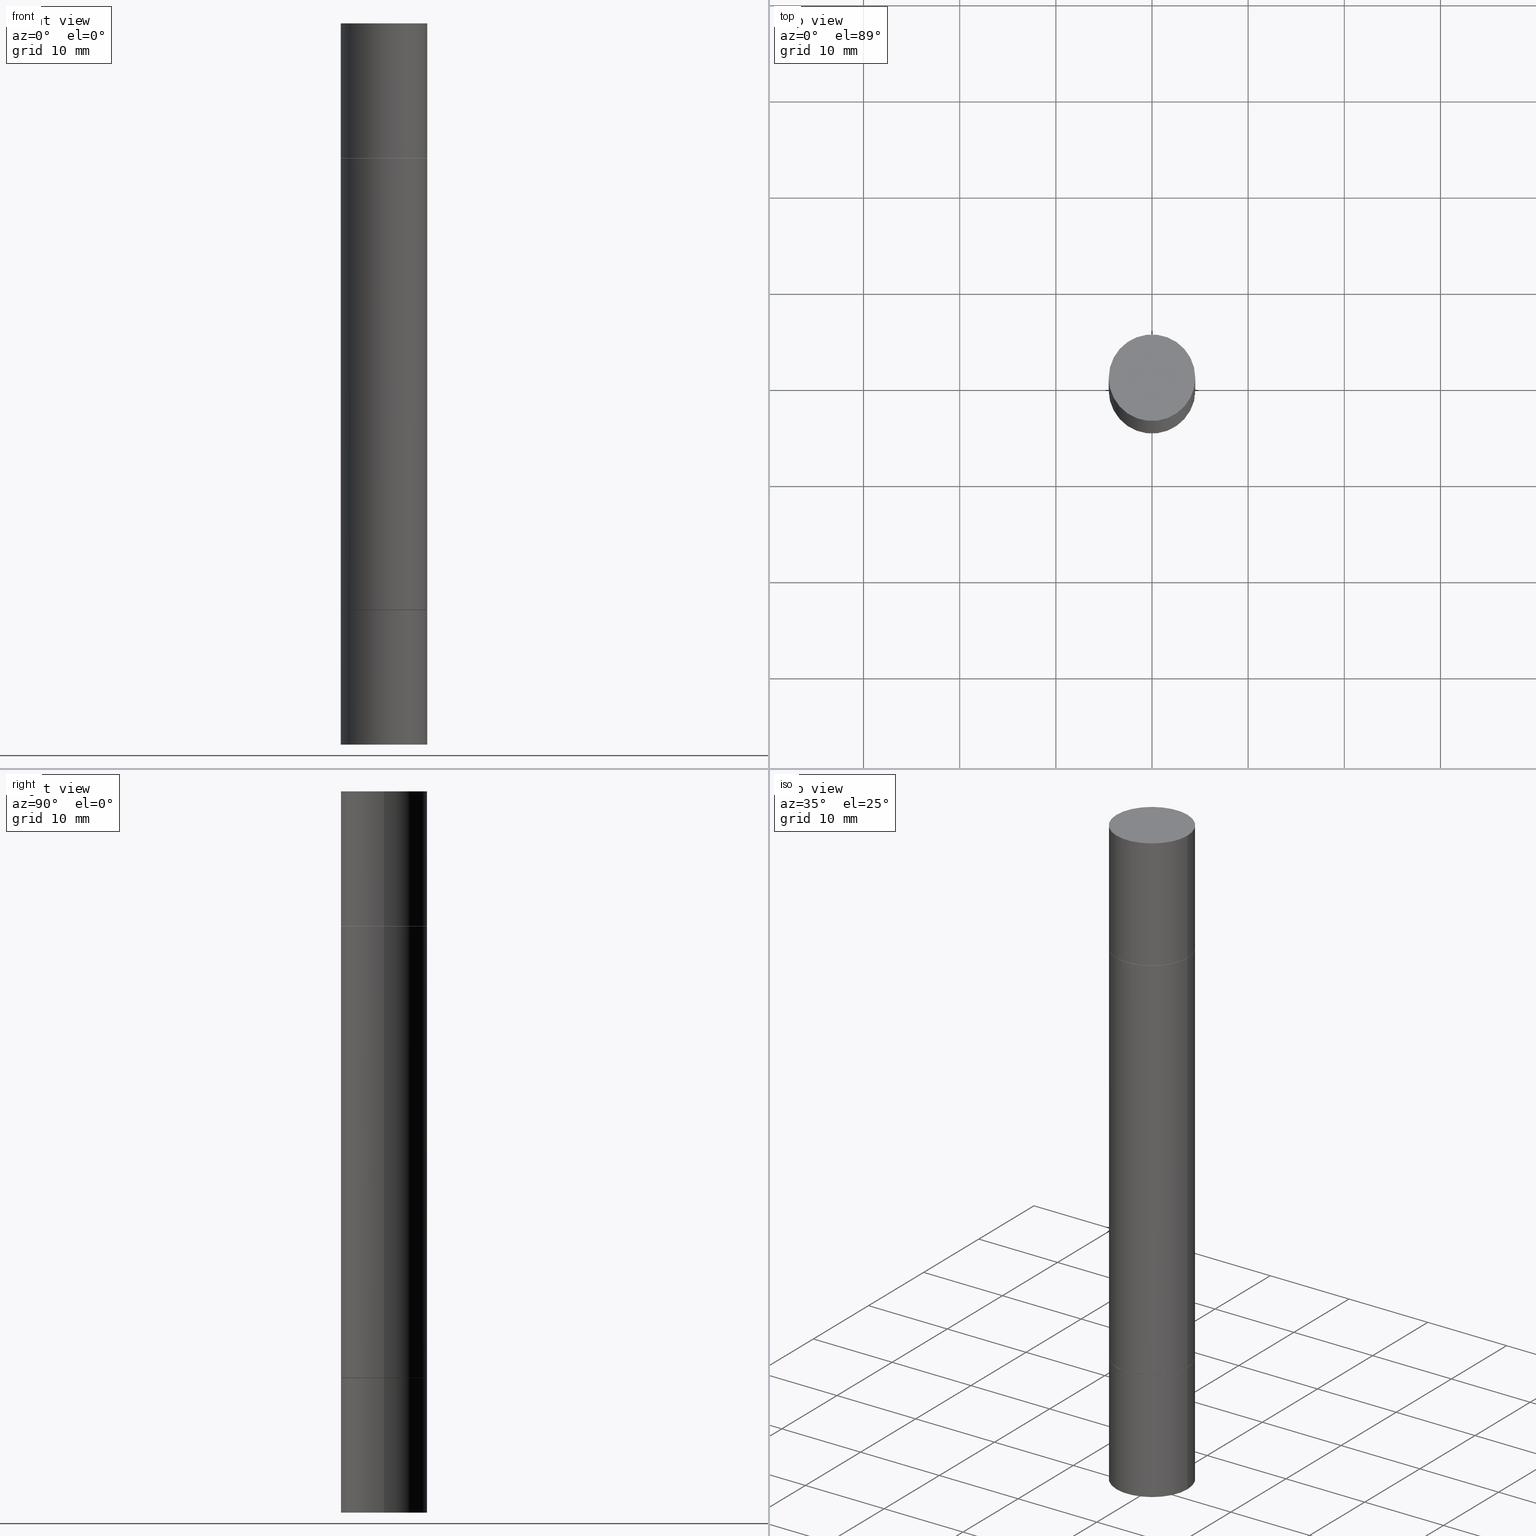
[diagram: canonical four-view strip — front | top / right | iso, engineering-drawing reading convention]
A machine part, canonical four-view strip (front | top / right | iso — engineering-drawing reading convention). The complete STEP part file that produces these views, byte-faithful:
ISO-10303-21;
HEADER;
FILE_DESCRIPTION (( 'STEP AP203' ),
    '1' );
FILE_NAME ('48938.STEP',
    '2024-03-04T15:49:49',
    ( '' ),
    ( '' ),
    'SwSTEP 2.0',
    'SolidWorks 2023',
    '' );
FILE_SCHEMA (( 'CONFIG_CONTROL_DESIGN' ));
ENDSEC;

DATA;
#1 = CARTESIAN_POINT ( 'NONE',  ( 0.000000000000000000, -1.031172645228302408E-14, -2.952799999999998981 ) ) ;
#2 = AXIS2_PLACEMENT_3D ( 'NONE', #75, #79, #178 ) ;
#3 = DIRECTION ( 'NONE',  ( 2.445468806185136597E-29, 3.492890411551752677E-15, 1.000000000000000000 ) ) ;
#4 = ORIENTED_EDGE ( 'NONE', *, *, #443, .F. ) ;
#5 = FACE_OUTER_BOUND ( 'NONE', #192, .T. ) ;
#6 = ORIENTED_EDGE ( 'NONE', *, *, #333, .T. ) ;
#7 = CARTESIAN_POINT ( 'NONE',  ( 5.873037884934223228E-29, -8.385141583365697263E-15, -2.401599999999999735 ) ) ;
#8 = EDGE_CURVE ( 'NONE', #269, #176, #424, .T. ) ;
#9 = DIRECTION ( 'NONE',  ( -2.445468806185136597E-29, 3.491481338843145583E-15, 1.000000000000000000 ) ) ;
#10 = ORIENTED_EDGE ( 'NONE', *, *, #88, .F. ) ;
#11 = MANIFOLD_SOLID_BREP ( 'Mirror1[1]', #201 ) ;
#12 = AXIS2_PLACEMENT_3D ( 'NONE', #146, #668, #454 ) ;
#13 = AXIS2_PLACEMENT_3D ( 'NONE', #523, #575, #111 ) ;
#14 = MANIFOLD_SOLID_BREP ( 'Body-Move/Copy2[1]', #244 ) ;
#15 = VECTOR ( 'NONE', #126, 39.37007874015748143 ) ;
#16 = CARTESIAN_POINT ( 'NONE',  ( 1.237031838352180770E-15, 0.1771499999999980590, -0.5512000000000003563 ) ) ;
#17 = EDGE_LOOP ( 'NONE', ( #329, #143 ) ) ;
#18 = CARTESIAN_POINT ( 'NONE',  ( 5.873037884934223228E-29, -1.923200839900334937E-15, -0.5511999999999992461 ) ) ;
#19 = EDGE_LOOP ( 'NONE', ( #61, #420, #639, #156 ) ) ;
#20 = DIRECTION ( 'NONE',  ( -2.445468806185136877E-29, -3.492890411551753071E-15, -1.000000000000000000 ) ) ;
#21 = EDGE_LOOP ( 'NONE', ( #32, #429, #321, #266 ) ) ;
#22 = CARTESIAN_POINT ( 'NONE',  ( 0.000000000000000000, -1.031172645228302408E-14, -2.952799999999998981 ) ) ;
#23 = ORIENTED_EDGE ( 'NONE', *, *, #607, .F. ) ;
#24 = FACE_OUTER_BOUND ( 'NONE', #391, .T. ) ;
#25 = DIRECTION ( 'NONE',  ( 1.000000000000000000, -6.982962677686266711E-15, 0.000000000000000000 ) ) ;
#26 = AXIS2_PLACEMENT_3D ( 'NONE', #347, #279, #25 ) ;
#27 = DIRECTION ( 'NONE',  ( 2.445468806185136597E-29, 3.492890411551752677E-15, 1.000000000000000000 ) ) ;
#28 = AXIS2_PLACEMENT_3D ( 'NONE', #638, #173, #60 ) ;
#29 =( GEOMETRIC_REPRESENTATION_CONTEXT ( 3 ) GLOBAL_UNCERTAINTY_ASSIGNED_CONTEXT ( ( #664 ) ) GLOBAL_UNIT_ASSIGNED_CONTEXT ( ( #131, #484, #595 ) ) REPRESENTATION_CONTEXT ( 'NONE', 'WORKASPACE' ) );
#30 = CARTESIAN_POINT ( 'NONE',  ( 7.220980290903470182E-29, 2.080354946989631982E-18, 5.463695987328526437E-16 ) ) ;
#31 = CARTESIAN_POINT ( 'NONE',  ( 7.220980290903470182E-29, 2.080354946989631982E-18, 5.463695987328526437E-16 ) ) ;
#32 = ORIENTED_EDGE ( 'NONE', *, *, #585, .F. ) ;
#33 = MECHANICAL_CONTEXT ( 'NONE', #368, 'mechanical' ) ;
#34 = COORDINATED_UNIVERSAL_TIME_OFFSET ( 5, 0, .BEHIND. ) ;
#35 = CIRCLE ( 'NONE', #636, 0.1771500000000000019 ) ;
#36 = DIRECTION ( 'NONE',  ( -2.438088387897960049E-29, 3.491481338843145188E-15, 1.000000000000000000 ) ) ;
#37 = VECTOR ( 'NONE', #611, 39.37007874015748143 ) ;
#38 = DIRECTION ( 'NONE',  ( 2.445468806185136597E-29, 3.492890411551752677E-15, 1.000000000000000000 ) ) ;
#39 = ORIENTED_EDGE ( 'NONE', *, *, #576, .F. ) ;
#40 = DIRECTION ( 'NONE',  ( 2.445468806185136597E-29, 3.492890411551752677E-15, 1.000000000000000000 ) ) ;
#41 = LINE ( 'NONE', #253, #330 ) ;
#42 = DATE_AND_TIME ( #677, #141 ) ;
#43 = CARTESIAN_POINT ( 'NONE',  ( 0.1771500000000000019, -1.154875829063514805E-14, -2.952799999999998981 ) ) ;
#44 = DATE_TIME_ROLE ( 'creation_date' ) ;
#45 = DIRECTION ( 'NONE',  ( 1.000000000000000000, -6.982962677686266711E-15, 0.000000000000000000 ) ) ;
#46 = AXIS2_PLACEMENT_3D ( 'NONE', #294, #69, #411 ) ;
#47 = VECTOR ( 'NONE', #613, 39.37007874015748143 ) ;
#48 = EDGE_CURVE ( 'NONE', #179, #340, #225, .T. ) ;
#49 = DIRECTION ( 'NONE',  ( 1.000000000000000000, -6.982962677686266711E-15, 0.000000000000000000 ) ) ;
#50 = FACE_OUTER_BOUND ( 'NONE', #335, .T. ) ;
#51 = CARTESIAN_POINT ( 'NONE',  ( 0.1771499999999998354, -4.777790227842073988E-15, -1.476399999999999491 ) ) ;
#52 = LINE ( 'NONE', #416, #170 ) ;
#53 = CARTESIAN_POINT ( 'NONE',  ( 5.873037884934223228E-29, -8.385141583365697263E-15, -2.401599999999999735 ) ) ;
#54 = CARTESIAN_POINT ( 'NONE',  ( 5.870592416128037625E-29, -1.926693730311889446E-15, -0.5521999999999996911 ) ) ;
#55 = VERTEX_POINT ( 'NONE', #129 ) ;
#56 = AXIS2_PLACEMENT_3D ( 'NONE', #341, #498, #445 ) ;
#57 = AXIS2_PLACEMENT_3D ( 'NONE', #470, #9, #105 ) ;
#58 = DIRECTION ( 'NONE',  ( -2.445468806185136597E-29, -3.492890411551752677E-15, -1.000000000000000000 ) ) ;
#59 = EDGE_LOOP ( 'NONE', ( #385, #6 ) ) ;
#60 = DIRECTION ( 'NONE',  ( 0.000000000000000000, 1.000000000000000000, -3.084220145260249380E-15 ) ) ;
#61 = ORIENTED_EDGE ( 'NONE', *, *, #354, .F. ) ;
#62 = CARTESIAN_POINT ( 'NONE',  ( 5.873037884934223228E-29, -1.923200839900334937E-15, -0.5511999999999992461 ) ) ;
#63 = ORIENTED_EDGE ( 'NONE', *, *, #262, .T. ) ;
#64 = VECTOR ( 'NONE', #676, 39.37007874015748143 ) ;
#65 = CIRCLE ( 'NONE', #260, 0.1771500000000000019 ) ;
#66 = LOCAL_TIME ( 10, 49, 49.00000000000000000, #623 ) ;
#67 = DIRECTION ( 'NONE',  ( 1.000000000000000000, -6.982962677686266711E-15, 0.000000000000000000 ) ) ;
#68 = EDGE_LOOP ( 'NONE', ( #274, #214, #372, #160 ) ) ;
#69 = DIRECTION ( 'NONE',  ( 2.445468806185136597E-29, 3.492890411551752677E-15, 1.000000000000000000 ) ) ;
#70 = CYLINDRICAL_SURFACE ( 'NONE', #553, 0.1771499999999998354 ) ;
#71 = EDGE_LOOP ( 'NONE', ( #437, #233 ) ) ;
#72 = DIRECTION ( 'NONE',  ( -2.445468806185136597E-29, 3.491481338843145583E-15, 1.000000000000000000 ) ) ;
#73 = ORIENTED_EDGE ( 'NONE', *, *, #295, .T. ) ;
#74 = AXIS2_PLACEMENT_3D ( 'NONE', #227, #77, #496 ) ;
#75 = CARTESIAN_POINT ( 'NONE',  ( 0.000000000000000000, -1.031172645228302408E-14, -2.952799999999998981 ) ) ;
#76 = DIRECTION ( 'NONE',  ( 1.000000000000000000, -6.982962677686267499E-15, 0.000000000000000000 ) ) ;
#77 = DIRECTION ( 'NONE',  ( -2.438088387897959769E-29, -3.492890411551753071E-15, -1.000000000000000000 ) ) ;
#78 = ORIENTED_EDGE ( 'NONE', *, *, #167, .T. ) ;
#79 = DIRECTION ( 'NONE',  ( -2.445468806185136597E-29, -3.492890411551752677E-15, -1.000000000000000000 ) ) ;
#80 = CARTESIAN_POINT ( 'NONE',  ( -0.1771500000000000019, -9.096389231977797770E-15, -2.952799999999998981 ) ) ;
#81 = PLANE ( 'NONE',  #124 ) ;
#82 = CARTESIAN_POINT ( 'NONE',  ( 5.873037884934223228E-29, -1.923200839900334937E-15, -0.5511999999999992461 ) ) ;
#83 = APPROVAL_STATUS ( 'not_yet_approved' ) ;
#84 = CARTESIAN_POINT ( 'NONE',  ( 5.873037884934223228E-29, -8.385141583365697263E-15, -2.401599999999999735 ) ) ;
#85 = ADVANCED_FACE ( 'NONE', ( #547 ), #288, .F. ) ;
#86 = AXIS2_PLACEMENT_3D ( 'NONE', #164, #632, #161 ) ;
#87 = DATE_TIME_ROLE ( 'classification_date' ) ;
#88 = EDGE_CURVE ( 'NONE', #169, #389, #505, .T. ) ;
#89 = CARTESIAN_POINT ( 'NONE',  ( 0.000000000000000000, -1.031172645228302408E-14, -2.952799999999998981 ) ) ;
#90 = PERSON_AND_ORGANIZATION_ROLE ( 'creator' ) ;
#91 = CARTESIAN_POINT ( 'NONE',  ( 5.870592416128037625E-29, -8.381650102026854256E-15, -2.400599999999999401 ) ) ;
#92 = EDGE_CURVE ( 'NONE', #179, #273, #404, .T. ) ;
#93 = CARTESIAN_POINT ( 'NONE',  ( -0.1761500000000000010, -7.133520554324280581E-15, -2.401599999999999735 ) ) ;
#94 = CARTESIAN_POINT ( 'NONE',  ( -0.1771500000000000019, -7.113565100066610661E-16, -0.5521999999999996911 ) ) ;
#95 = PERSON_AND_ORGANIZATION_ROLE ( 'classification_officer' ) ;
#96 = CARTESIAN_POINT ( 'NONE',  ( 0.1771500000000000019, -3.163725568664010262E-15, -0.5521999999999996911 ) ) ;
#97 = CIRCLE ( 'NONE', #673, 0.1771500000000000019 ) ;
#98 = EDGE_LOOP ( 'NONE', ( #133, #127, #39, #4 ) ) ;
#99 = CIRCLE ( 'NONE', #528, 0.1771500000000000019 ) ;
#100 = AXIS2_PLACEMENT_3D ( 'NONE', #91, #557, #353 ) ;
#101 = LOCAL_TIME ( 10, 49, 49.00000000000000000, #558 ) ;
#102 = DIRECTION ( 'NONE',  ( -1.000000000000000000, 6.982962677686265922E-15, -9.839502134516470631E-33 ) ) ;
#103 = FACE_OUTER_BOUND ( 'NONE', #286, .T. ) ;
#104 = CARTESIAN_POINT ( 'NONE',  ( -0.1771500000000000019, -8.088667383951849417E-15, -2.952799999999999869 ) ) ;
#105 = DIRECTION ( 'NONE',  ( 1.000000000000000000, -6.982962677686266711E-15, 4.876176775795935793E-29 ) ) ;
#106 = ORIENTED_EDGE ( 'NONE', *, *, #501, .T. ) ;
#107 = EDGE_CURVE ( 'NONE', #446, #318, #343, .T. ) ;
#108 = EDGE_CURVE ( 'NONE', #188, #626, #41, .T. ) ;
#109 = AXIS2_PLACEMENT_3D ( 'NONE', #18, #336, #282 ) ;
#110 = CONICAL_SURFACE ( 'NONE', #220, 0.1761500000000000010, 0.7853981633972775267 ) ;
#111 = DIRECTION ( 'NONE',  ( 1.000000000000000000, -6.982962677686267499E-15, 0.000000000000000000 ) ) ;
#112 = DIRECTION ( 'NONE',  ( -0.7071067811864267805, 2.381258160590016583E-15, -0.7071067811866682540 ) ) ;
#113 = VERTEX_POINT ( 'NONE', #200 ) ;
#114 = DIRECTION ( 'NONE',  ( 2.445468806185136597E-29, 3.492890411551752677E-15, 1.000000000000000000 ) ) ;
#115 = FACE_OUTER_BOUND ( 'NONE', #226, .T. ) ;
#116 = ORIENTED_EDGE ( 'NONE', *, *, #295, .F. ) ;
#117 = PRODUCT_RELATED_PRODUCT_CATEGORY ( 'detail', '', ( #667 ) ) ;
#118 = PLANE ( 'NONE',  #74 ) ;
#119 = EDGE_CURVE ( 'NONE', #55, #188, #35, .T. ) ;
#120 = DIRECTION ( 'NONE',  ( 1.000000000000000000, -6.982962677686267499E-15, 0.000000000000000000 ) ) ;
#121 = EDGE_LOOP ( 'NONE', ( #323, #578, #359, #251 ) ) ;
#122 = AXIS2_PLACEMENT_3D ( 'NONE', #355, #515, #365 ) ;
#123 = DIRECTION ( 'NONE',  ( 1.000000000000000000, -6.982962677686268288E-15, 0.000000000000000000 ) ) ;
#124 = AXIS2_PLACEMENT_3D ( 'NONE', #619, #154, #513 ) ;
#125 = APPROVAL_PERSON_ORGANIZATION ( #198, #155, #402 ) ;
#126 = DIRECTION ( 'NONE',  ( -2.445468806185136877E-29, -3.492890411551753071E-15, -1.000000000000000000 ) ) ;
#127 = ORIENTED_EDGE ( 'NONE', *, *, #607, .T. ) ;
#128 = DIRECTION ( 'NONE',  ( 1.000000000000000000, -6.982962677686267499E-15, 0.000000000000000000 ) ) ;
#129 = CARTESIAN_POINT ( 'NONE',  ( 0.1771500000000000019, -1.154667793568816250E-14, -2.952799999999999869 ) ) ;
#130 = LINE ( 'NONE', #503, #290 ) ;
#131 =( CONVERSION_BASED_UNIT ( 'INCH', #491 ) LENGTH_UNIT ( ) NAMED_UNIT ( #604 ) );
#132 = ORIENTED_EDGE ( 'NONE', *, *, #187, .F. ) ;
#133 = ORIENTED_EDGE ( 'NONE', *, *, #588, .F. ) ;
#134 = PLANE ( 'NONE',  #56 ) ;
#135 = FACE_OUTER_BOUND ( 'NONE', #68, .T. ) ;
#136 = EDGE_CURVE ( 'NONE', #633, #113, #438, .T. ) ;
#137 = ORIENTED_EDGE ( 'NONE', *, *, #186, .T. ) ;
#138 = AXIS2_PLACEMENT_3D ( 'NONE', #185, #641, #189 ) ;
#139 = CYLINDRICAL_SURFACE ( 'NONE', #209, 0.1771500000000000019 ) ;
#140 = AXIS2_PLACEMENT_3D ( 'NONE', #417, #535, #642 ) ;
#141 = LOCAL_TIME ( 10, 49, 49.00000000000000000, #34 ) ;
#142 = CC_DESIGN_DATE_AND_TIME_ASSIGNMENT ( #193, #87, ( #364 ) ) ;
#143 = ORIENTED_EDGE ( 'NONE', *, *, #186, .F. ) ;
#144 = SHAPE_DEFINITION_REPRESENTATION ( #559, #622 ) ;
#145 = DIRECTION ( 'NONE',  ( -1.000000000000000000, 6.982962677686265922E-15, -9.839502134516470631E-33 ) ) ;
#146 = CARTESIAN_POINT ( 'NONE',  ( 5.873037884934223228E-29, -1.923200839900334937E-15, -0.5511999999999992461 ) ) ;
#147 = PERSON_AND_ORGANIZATION ( #453, #172 ) ;
#148 = DIRECTION ( 'NONE',  ( 1.000000000000000000, -6.982962677686265922E-15, 4.876176775795935793E-29 ) ) ;
#149 = AXIS2_PLACEMENT_3D ( 'NONE', #54, #3, #419 ) ;
#150 = DIRECTION ( 'NONE',  ( 1.000000000000000000, -6.982962677686272233E-15, 0.000000000000000000 ) ) ;
#151 = APPROVAL_STATUS ( 'not_yet_approved' ) ;
#152 = LINE ( 'NONE', #357, #362 ) ;
#153 = APPLICATION_PROTOCOL_DEFINITION ( 'international standard', 'config_control_design', 1994, #510 ) ;
#154 = DIRECTION ( 'NONE',  ( 2.438088387897959769E-29, 3.492890411551753071E-15, 1.000000000000000000 ) ) ;
#155 = APPROVAL ( #83, 'UNSPECIFIED' ) ;
#156 = ORIENTED_EDGE ( 'NONE', *, *, #187, .T. ) ;
#157 = DIRECTION ( 'NONE',  ( 1.000000000000000000, -6.982962677686272233E-15, 0.000000000000000000 ) ) ;
#158 = CIRCLE ( 'NONE', #109, 0.1761500000000000010 ) ;
#159 = AXIS2_PLACEMENT_3D ( 'NONE', #254, #458, #672 ) ;
#160 = ORIENTED_EDGE ( 'NONE', *, *, #628, .F. ) ;
#161 = DIRECTION ( 'NONE',  ( 1.000000000000000000, -6.982962677686268288E-15, 0.000000000000000000 ) ) ;
#162 = ORIENTED_EDGE ( 'NONE', *, *, #356, .T. ) ;
#163 = DIRECTION ( 'NONE',  ( -2.445468806185136877E-29, -3.492890411551753071E-15, -1.000000000000000000 ) ) ;
#164 = CARTESIAN_POINT ( 'NONE',  ( 0.000000000000000000, -1.031172645228302408E-14, -2.952799999999998981 ) ) ;
#165 = ORIENTED_EDGE ( 'NONE', *, *, #92, .F. ) ;
#166 = EDGE_LOOP ( 'NONE', ( #464, #552, #223, #215 ) ) ;
#167 = EDGE_CURVE ( 'NONE', #442, #240, #52, .T. ) ;
#168 = FACE_OUTER_BOUND ( 'NONE', #587, .T. ) ;
#169 = VERTEX_POINT ( 'NONE', #370 ) ;
#170 = VECTOR ( 'NONE', #163, 39.37007874015748143 ) ;
#171 = AXIS2_PLACEMENT_3D ( 'NONE', #183, #384, #76 ) ;
#172 = ORGANIZATION ( 'UNSPECIFIED', 'UNSPECIFIED', '' ) ;
#173 = DIRECTION ( 'NONE',  ( -0.000000000000000000, -3.492185875197449130E-15, -1.000000000000000000 ) ) ;
#174 = ORIENTED_EDGE ( 'NONE', *, *, #322, .T. ) ;
#175 = DIRECTION ( 'NONE',  ( 0.7071067811864267805, -7.407546758113824138E-15, -0.7071067811866682540 ) ) ;
#176 = VERTEX_POINT ( 'NONE', #310 ) ;
#177 = DIRECTION ( 'NONE',  ( 1.000000000000000000, -6.982962677686266711E-15, 0.000000000000000000 ) ) ;
#178 = DIRECTION ( 'NONE',  ( 1.000000000000000000, -6.982962677686272233E-15, 0.000000000000000000 ) ) ;
#179 = VERTEX_POINT ( 'NONE', #579 ) ;
#180 = CIRCLE ( 'NONE', #561, 0.1771499999999998354 ) ;
#181 = CC_DESIGN_APPROVAL ( #155, ( #640 ) ) ;
#182 = EDGE_LOOP ( 'NONE', ( #397, #648 ) ) ;
#183 = CARTESIAN_POINT ( 'NONE',  ( 5.873037884934223228E-29, -1.923200839900334937E-15, -0.5511999999999992461 ) ) ;
#184 = DIRECTION ( 'NONE',  ( 0.000000000000000000, 3.492185875197449524E-15, 1.000000000000000000 ) ) ;
#185 = CARTESIAN_POINT ( 'NONE',  ( 5.873037884934223228E-29, -8.385141583365697263E-15, -2.401599999999999735 ) ) ;
#186 = EDGE_CURVE ( 'NONE', #169, #489, #448, .T. ) ;
#187 = EDGE_CURVE ( 'NONE', #525, #540, #97, .T. ) ;
#188 = VERTEX_POINT ( 'NONE', #104 ) ;
#189 = DIRECTION ( 'NONE',  ( 1.000000000000000000, -6.982962677686266711E-15, 0.000000000000000000 ) ) ;
#190 = DIRECTION ( 'NONE',  ( 1.000000000000000000, -6.982962677686268288E-15, 0.000000000000000000 ) ) ;
#191 = CLOSED_SHELL ( 'NONE', ( #379, #527, #616, #566, #582, #236, #194, #422 ) ) ;
#192 = EDGE_LOOP ( 'NONE', ( #543, #73, #162, #229 ) ) ;
#193 = DATE_AND_TIME ( #610, #66 ) ;
#194 = ADVANCED_FACE ( 'NONE', ( #50 ), #349, .T. ) ;
#195 = COORDINATED_UNIVERSAL_TIME_OFFSET ( 5, 0, .BEHIND. ) ;
#196 = CARTESIAN_POINT ( 'NONE',  ( 0.1761500000000000010, -9.615190459040133643E-15, -2.401599999999999735 ) ) ;
#197 = CC_DESIGN_DATE_AND_TIME_ASSIGNMENT ( #263, #44, ( #640 ) ) ;
#198 = PERSON_AND_ORGANIZATION ( #453, #172 ) ;
#199 = CARTESIAN_POINT ( 'NONE',  ( -0.1771500000000000019, 2.547769778285537851E-16, 5.463695987328559963E-16 ) ) ;
#200 = CARTESIAN_POINT ( 'NONE',  ( -0.1771500000000000019, 2.547769778285537851E-16, -0.5511999999999995792 ) ) ;
#201 = CLOSED_SHELL ( 'NONE', ( #620, #618, #85, #239, #313, #573 ) ) ;
#202 = FACE_OUTER_BOUND ( 'NONE', #17, .T. ) ;
#203 = AXIS2_PLACEMENT_3D ( 'NONE', #84, #252, #302 ) ;
#204 = APPROVAL_DATE_TIME ( #303, #512 ) ;
#205 = PLANE ( 'NONE',  #245 ) ;
#206 = ORIENTED_EDGE ( 'NONE', *, *, #350, .F. ) ;
#207 = DIRECTION ( 'NONE',  ( 2.438088387897959769E-29, 3.492890411551753071E-15, 1.000000000000000000 ) ) ;
#208 = FACE_OUTER_BOUND ( 'NONE', #21, .T. ) ;
#209 = AXIS2_PLACEMENT_3D ( 'NONE', #555, #334, #297 ) ;
#210 = PLANE ( 'NONE',  #674 ) ;
#211 = ORIENTED_EDGE ( 'NONE', *, *, #451, .F. ) ;
#212 = EDGE_CURVE ( 'NONE', #273, #179, #158, .T. ) ;
#213 = DIRECTION ( 'NONE',  ( -2.438088387897959769E-29, -3.492890411551753071E-15, -1.000000000000000000 ) ) ;
#214 = ORIENTED_EDGE ( 'NONE', *, *, #354, .T. ) ;
#215 = ORIENTED_EDGE ( 'NONE', *, *, #360, .F. ) ;
#216 = EDGE_CURVE ( 'NONE', #649, #442, #614, .T. ) ;
#217 = LINE ( 'NONE', #524, #232 ) ;
#218 = EDGE_LOOP ( 'NONE', ( #600, #296 ) ) ;
#219 = CONICAL_SURFACE ( 'NONE', #390, 0.1761500000000000010, 0.7853981633972775267 ) ;
#220 = AXIS2_PLACEMENT_3D ( 'NONE', #374, #380, #634 ) ;
#221 = EDGE_CURVE ( 'NONE', #188, #55, #307, .T. ) ;
#222 = CARTESIAN_POINT ( 'NONE',  ( 0.000000000000000000, -1.031172645228302408E-14, -2.952799999999998981 ) ) ;
#223 = ORIENTED_EDGE ( 'NONE', *, *, #256, .F. ) ;
#224 = CARTESIAN_POINT ( 'NONE',  ( 7.220980290903470182E-29, -1.030964609733603853E-14, -2.952799999999999869 ) ) ;
#225 = LINE ( 'NONE', #228, #570 ) ;
#226 = EDGE_LOOP ( 'NONE', ( #132, #211 ) ) ;
#227 = CARTESIAN_POINT ( 'NONE',  ( 5.873037884934223228E-29, -1.923200839900334937E-15, -0.5511999999999992461 ) ) ;
#228 = CARTESIAN_POINT ( 'NONE',  ( -0.1761500000000000010, -7.147241175928796487E-16, -0.5511999999999992461 ) ) ;
#229 = ORIENTED_EDGE ( 'NONE', *, *, #167, .F. ) ;
#230 = EDGE_CURVE ( 'NONE', #489, #169, #460, .T. ) ;
#231 = CIRCLE ( 'NONE', #138, 0.1771500000000000019 ) ;
#232 = VECTOR ( 'NONE', #586, 39.37007874015748143 ) ;
#233 = ORIENTED_EDGE ( 'NONE', *, *, #350, .T. ) ;
#234 = CARTESIAN_POINT ( 'NONE',  ( 0.1761500000000000010, -3.153249715574770922E-15, -0.5511999999999992461 ) ) ;
#235 = EDGE_LOOP ( 'NONE', ( #477, #433, #569, #63 ) ) ;
#236 = ADVANCED_FACE ( 'NONE', ( #24 ), #644, .T. ) ;
#237 = FACE_OUTER_BOUND ( 'NONE', #373, .T. ) ;
#238 = DIRECTION ( 'NONE',  ( 2.445468806185136597E-29, 3.492890411551752677E-15, 1.000000000000000000 ) ) ;
#239 = ADVANCED_FACE ( 'NONE', ( #287 ), #118, .F. ) ;
#240 = VERTEX_POINT ( 'NONE', #658 ) ;
#241 = DIRECTION ( 'NONE',  ( 1.000000000000000000, -6.982962677686266711E-15, 0.000000000000000000 ) ) ;
#242 = EDGE_CURVE ( 'NONE', #176, #269, #537, .T. ) ;
#243 = MANIFOLD_SOLID_BREP ( 'Mirror1[4]', #361 ) ;
#244 = CLOSED_SHELL ( 'NONE', ( #534, #337, #493, #434 ) ) ;
#245 = AXIS2_PLACEMENT_3D ( 'NONE', #407, #36, #148 ) ;
#246 = MANIFOLD_SOLID_BREP ( 'Combine1', #191 ) ;
#247 = DATE_AND_TIME ( #462, #101 ) ;
#248 = DIRECTION ( 'NONE',  ( -2.445468806185136877E-29, -3.492890411551753071E-15, -1.000000000000000000 ) ) ;
#249 = DIRECTION ( 'NONE',  ( 1.000000000000000000, -6.982962677686267499E-15, 0.000000000000000000 ) ) ;
#250 = PERSON_AND_ORGANIZATION ( #453, #172 ) ;
#251 = ORIENTED_EDGE ( 'NONE', *, *, #514, .F. ) ;
#252 = DIRECTION ( 'NONE',  ( -2.445468806185136597E-29, 3.491481338843145583E-15, 1.000000000000000000 ) ) ;
#253 = CARTESIAN_POINT ( 'NONE',  ( -0.1771500000000000019, 1.258726456399017493E-15, -8.713893512386565325E-30 ) ) ;
#254 = CARTESIAN_POINT ( 'NONE',  ( 0.000000000000000000, 0.000000000000000000, 0.000000000000000000 ) ) ;
#255 = EDGE_CURVE ( 'NONE', #318, #446, #629, .T. ) ;
#256 = EDGE_CURVE ( 'NONE', #409, #626, #231, .T. ) ;
#257 = PERSON_AND_ORGANIZATION_ROLE ( 'design_supplier' ) ;
#258 = AXIS2_PLACEMENT_3D ( 'NONE', #278, #490, #177 ) ;
#259 = FACE_OUTER_BOUND ( 'NONE', #530, .T. ) ;
#260 = AXIS2_PLACEMENT_3D ( 'NONE', #346, #27, #488 ) ;
#261 = ORIENTED_EDGE ( 'NONE', *, *, #443, .T. ) ;
#262 = EDGE_CURVE ( 'NONE', #444, #340, #412, .T. ) ;
#263 = DATE_AND_TIME ( #517, #521 ) ;
#264 = CARTESIAN_POINT ( 'NONE',  ( 5.873037884934223228E-29, -1.923200839900336120E-15, -0.5511999999999995792 ) ) ;
#265 = DIRECTION ( 'NONE',  ( 2.438088387897959769E-29, 3.492890411551753071E-15, 1.000000000000000000 ) ) ;
#266 = ORIENTED_EDGE ( 'NONE', *, *, #624, .T. ) ;
#267 = FACE_OUTER_BOUND ( 'NONE', #182, .T. ) ;
#268 = VECTOR ( 'NONE', #405, 39.37007874015748143 ) ;
#269 = VERTEX_POINT ( 'NONE', #590 ) ;
#270 = LINE ( 'NONE', #472, #494 ) ;
#271 = ORIENTED_EDGE ( 'NONE', *, *, #360, .T. ) ;
#272 = DIRECTION ( 'NONE',  ( -2.445468806185136597E-29, -3.492890411551752677E-15, -1.000000000000000000 ) ) ;
#273 = VERTEX_POINT ( 'NONE', #599 ) ;
#274 = ORIENTED_EDGE ( 'NONE', *, *, #8, .F. ) ;
#275 = DIRECTION ( 'NONE',  ( 2.438088387897960049E-29, -3.491481338843145188E-15, -1.000000000000000000 ) ) ;
#276 = ORIENTED_EDGE ( 'NONE', *, *, #679, .F. ) ;
#277 = AXIS2_PLACEMENT_3D ( 'NONE', #1, #58, #314 ) ;
#278 = CARTESIAN_POINT ( 'NONE',  ( 5.870592416128037625E-29, -1.926693730311889446E-15, -0.5521999999999996911 ) ) ;
#279 = DIRECTION ( 'NONE',  ( 2.445468806185136597E-29, 3.492890411551752677E-15, 1.000000000000000000 ) ) ;
#280 = CARTESIAN_POINT ( 'NONE',  ( 5.870592416128037625E-29, -1.926693730311889446E-15, -0.5521999999999996911 ) ) ;
#281 = ORIENTED_EDGE ( 'NONE', *, *, #255, .F. ) ;
#282 = DIRECTION ( 'NONE',  ( 1.000000000000000000, -6.982962677686267499E-15, 0.000000000000000000 ) ) ;
#283 = EDGE_LOOP ( 'NONE', ( #276, #369, #345, #643 ) ) ;
#284 = FACE_OUTER_BOUND ( 'NONE', #554, .T. ) ;
#285 = FACE_OUTER_BOUND ( 'NONE', #98, .T. ) ;
#286 = EDGE_LOOP ( 'NONE', ( #23, #657, #261, #545 ) ) ;
#287 = FACE_OUTER_BOUND ( 'NONE', #659, .T. ) ;
#288 = PLANE ( 'NONE',  #492 ) ;
#289 = APPLICATION_PROTOCOL_DEFINITION ( 'international standard', 'config_control_design', 1994, #368 ) ;
#290 = VECTOR ( 'NONE', #20, 39.37007874015748143 ) ;
#291 = PRODUCT_DEFINITION_FORMATION_WITH_SPECIFIED_SOURCE ( 'ANY', '', #667, .NOT_KNOWN. ) ;
#292 = CARTESIAN_POINT ( 'NONE',  ( 5.870592416128037625E-29, -8.381650102026854256E-15, -2.400599999999999401 ) ) ;
#293 = CARTESIAN_POINT ( 'NONE',  ( -0.1771500000000000019, -8.088667383951849417E-15, -2.401599999999999735 ) ) ;
#294 = CARTESIAN_POINT ( 'NONE',  ( 5.873037884934223228E-29, -1.923200839900334937E-15, -0.5511999999999992461 ) ) ;
#295 = EDGE_CURVE ( 'NONE', #649, #389, #130, .T. ) ;
#296 = ORIENTED_EDGE ( 'NONE', *, *, #661, .T. ) ;
#297 = DIRECTION ( 'NONE',  ( 1.000000000000000000, -6.982962677686272233E-15, 0.000000000000000000 ) ) ;
#298 = LINE ( 'NONE', #456, #268 ) ;
#299 = AXIS2_PLACEMENT_3D ( 'NONE', #31, #238, #387 ) ;
#300 = VECTOR ( 'NONE', #666, 39.37007874015748143 ) ;
#301 = SECURITY_CLASSIFICATION_LEVEL ( 'unclassified' ) ;
#302 = DIRECTION ( 'NONE',  ( 1.000000000000000000, -6.982962677686267499E-15, 0.000000000000000000 ) ) ;
#303 = DATE_AND_TIME ( #400, #583 ) ;
#304 = FACE_OUTER_BOUND ( 'NONE', #218, .T. ) ;
#305 = PERSON_AND_ORGANIZATION ( #453, #172 ) ;
#306 = FACE_OUTER_BOUND ( 'NONE', #19, .T. ) ;
#307 = CIRCLE ( 'NONE', #317, 0.1771500000000000019 ) ;
#308 = AXIS2_PLACEMENT_3D ( 'NONE', #292, #487, #241 ) ;
#309 = CARTESIAN_POINT ( 'NONE',  ( 0.1761500000000000010, -3.153249715574770922E-15, -0.5511999999999992461 ) ) ;
#310 = CARTESIAN_POINT ( 'NONE',  ( 0.1771500000000000019, -1.234951483405132701E-15, 5.463695987328526437E-16 ) ) ;
#311 = ADVANCED_FACE ( 'NONE', ( #284 ), #383, .T. ) ;
#312 = DIRECTION ( 'NONE',  ( -1.000000000000000000, 6.982962677686265922E-15, -4.876176775795935793E-29 ) ) ;
#313 = ADVANCED_FACE ( 'NONE', ( #339 ), #219, .T. ) ;
#314 = DIRECTION ( 'NONE',  ( 1.000000000000000000, -6.982962677686268288E-15, 0.000000000000000000 ) ) ;
#315 = DIRECTION ( 'NONE',  ( 1.000000000000000000, -6.982962677686266711E-15, 0.000000000000000000 ) ) ;
#316 = CARTESIAN_POINT ( 'NONE',  ( -0.1761500000000000010, -7.147241175928796487E-16, -0.5511999999999992461 ) ) ;
#317 = AXIS2_PLACEMENT_3D ( 'NONE', #224, #327, #589 ) ;
#318 = VERTEX_POINT ( 'NONE', #594 ) ;
#319 = AXIS2_PLACEMENT_3D ( 'NONE', #264, #518, #45 ) ;
#320 = DIRECTION ( 'NONE',  ( 2.445468806185136597E-29, 3.492890411551752677E-15, 1.000000000000000000 ) ) ;
#321 = ORIENTED_EDGE ( 'NONE', *, *, #630, .T. ) ;
#322 = EDGE_CURVE ( 'NONE', #240, #389, #519, .T. ) ;
#323 = ORIENTED_EDGE ( 'NONE', *, *, #230, .T. ) ;
#324 = CC_DESIGN_PERSON_AND_ORGANIZATION_ASSIGNMENT ( #394, #647, ( #667 ) ) ;
#325 = DIRECTION ( 'NONE',  ( 1.000000000000000000, -6.982962677686266711E-15, 0.000000000000000000 ) ) ;
#326 = VERTEX_POINT ( 'NONE', #651 ) ;
#327 = DIRECTION ( 'NONE',  ( -2.445468806185136597E-29, 3.491481338843145583E-15, 1.000000000000000000 ) ) ;
#328 = DIRECTION ( 'NONE',  ( -2.445468806185136597E-29, -3.492890411551752677E-15, -1.000000000000000000 ) ) ;
#329 = ORIENTED_EDGE ( 'NONE', *, *, #230, .F. ) ;
#330 = VECTOR ( 'NONE', #457, 39.37007874015748143 ) ;
#331 = CIRCLE ( 'NONE', #149, 0.1771500000000000019 ) ;
#332 = AXIS2_PLACEMENT_3D ( 'NONE', #504, #432, #392 ) ;
#333 = EDGE_CURVE ( 'NONE', #603, #500, #180, .T. ) ;
#334 = DIRECTION ( 'NONE',  ( -2.445468806185136597E-29, -3.492890411551752677E-15, -1.000000000000000000 ) ) ;
#335 = EDGE_LOOP ( 'NONE', ( #10, #137, #621, #536 ) ) ;
#336 = DIRECTION ( 'NONE',  ( 2.445468806185136597E-29, 3.492890411551752677E-15, 1.000000000000000000 ) ) ;
#337 = ADVANCED_FACE ( 'NONE', ( #601 ), #134, .T. ) ;
#338 = ORIENTED_EDGE ( 'NONE', *, *, #216, .T. ) ;
#339 = FACE_OUTER_BOUND ( 'NONE', #235, .T. ) ;
#340 = VERTEX_POINT ( 'NONE', #94 ) ;
#341 = CARTESIAN_POINT ( 'NONE',  ( 1.237031838352194377E-15, 0.1771499999999897046, -2.952800000000000313 ) ) ;
#342 = DIRECTION ( 'NONE',  ( 2.445468806185136597E-29, 3.492890411551752677E-15, 1.000000000000000000 ) ) ;
#343 = CIRCLE ( 'NONE', #12, 0.1761500000000000010 ) ;
#344 = AXIS2_PLACEMENT_3D ( 'NONE', #511, #275, #312 ) ;
#345 = ORIENTED_EDGE ( 'NONE', *, *, #377, .T. ) ;
#346 = CARTESIAN_POINT ( 'NONE',  ( 5.870592416128037625E-29, -1.926693730311889446E-15, -0.5521999999999996911 ) ) ;
#347 = CARTESIAN_POINT ( 'NONE',  ( 7.220980290903470182E-29, 2.080354946989631982E-18, 5.463695987328526437E-16 ) ) ;
#348 = FACE_OUTER_BOUND ( 'NONE', #121, .T. ) ;
#349 = CONICAL_SURFACE ( 'NONE', #375, 0.1761500000000000010, 0.7853981633972775267 ) ;
#350 = EDGE_CURVE ( 'NONE', #626, #409, #351, .T. ) ;
#351 = CIRCLE ( 'NONE', #637, 0.1771500000000000019 ) ;
#352 = APPROVAL_DATE_TIME ( #247, #593 ) ;
#353 = DIRECTION ( 'NONE',  ( 1.000000000000000000, -6.982962677686266711E-15, 0.000000000000000000 ) ) ;
#354 = EDGE_CURVE ( 'NONE', #269, #540, #670, .T. ) ;
#355 = CARTESIAN_POINT ( 'NONE',  ( 5.873037884934223228E-29, -1.923200839900336120E-15, -0.5511999999999995792 ) ) ;
#356 = EDGE_CURVE ( 'NONE', #389, #240, #413, .T. ) ;
#357 = CARTESIAN_POINT ( 'NONE',  ( 0.1771499999999998354, -1.154875829063514490E-14, -2.952799999999998981 ) ) ;
#358 = CYLINDRICAL_SURFACE ( 'NONE', #596, 0.1771500000000000019 ) ;
#359 = ORIENTED_EDGE ( 'NONE', *, *, #322, .F. ) ;
#360 = EDGE_CURVE ( 'NONE', #55, #409, #298, .T. ) ;
#361 = CLOSED_SHELL ( 'NONE', ( #671, #474, #556, #428 ) ) ;
#362 = VECTOR ( 'NONE', #248, 39.37007874015748143 ) ;
#363 = CARTESIAN_POINT ( 'NONE',  ( 0.1771500000000000019, -3.160232678252458120E-15, -0.5511999999999995792 ) ) ;
#364 = SECURITY_CLASSIFICATION ( '', '', #301 ) ;
#365 = DIRECTION ( 'NONE',  ( 1.000000000000000000, -6.982962677686266711E-15, 0.000000000000000000 ) ) ;
#366 = DIRECTION ( 'NONE',  ( -2.445468806185136597E-29, 3.491481338843145583E-15, 1.000000000000000000 ) ) ;
#367 = CYLINDRICAL_SURFACE ( 'NONE', #57, 0.1771500000000000019 ) ;
#368 = APPLICATION_CONTEXT ( 'configuration controlled 3d designs of mechanical parts and assemblies' ) ;
#369 = ORIENTED_EDGE ( 'NONE', *, *, #459, .F. ) ;
#370 = CARTESIAN_POINT ( 'NONE',  ( -0.1761500000000000010, -7.128222099976058179E-15, -2.401599999999999735 ) ) ;
#371 = CARTESIAN_POINT ( 'NONE',  ( -0.1771499999999998354, -2.325421169184726863E-15, -1.476399999999999491 ) ) ;
#372 = ORIENTED_EDGE ( 'NONE', *, *, #451, .T. ) ;
#373 = EDGE_LOOP ( 'NONE', ( #165, #597, #425, #431 ) ) ;
#374 = CARTESIAN_POINT ( 'NONE',  ( 5.873037884934223228E-29, -1.923200839900334937E-15, -0.5511999999999992461 ) ) ;
#375 = AXIS2_PLACEMENT_3D ( 'NONE', #7, #421, #128 ) ;
#376 = ORIENTED_EDGE ( 'NONE', *, *, #221, .F. ) ;
#377 = EDGE_CURVE ( 'NONE', #326, #633, #678, .T. ) ;
#378 = CONICAL_SURFACE ( 'NONE', #571, 0.1761500000000000010, 0.7853981633972775267 ) ;
#379 = ADVANCED_FACE ( 'NONE', ( #348 ), #439, .T. ) ;
#380 = DIRECTION ( 'NONE',  ( -2.445468806185136597E-29, -3.492890411551752677E-15, -1.000000000000000000 ) ) ;
#381 = ORIENTED_EDGE ( 'NONE', *, *, #8, .T. ) ;
#382 = CC_DESIGN_PERSON_AND_ORGANIZATION_ASSIGNMENT ( #455, #95, ( #364 ) ) ;
#383 = CYLINDRICAL_SURFACE ( 'NONE', #2, 0.1771500000000000019 ) ;
#384 = DIRECTION ( 'NONE',  ( -2.445468806185136597E-29, -3.492890411551752677E-15, -1.000000000000000000 ) ) ;
#385 = ORIENTED_EDGE ( 'NONE', *, *, #576, .T. ) ;
#386 = DIRECTION ( 'NONE',  ( -2.445468806185136597E-29, -3.492890411551752677E-15, -1.000000000000000000 ) ) ;
#387 = DIRECTION ( 'NONE',  ( 1.000000000000000000, -6.982962677686266711E-15, 0.000000000000000000 ) ) ;
#388 = CARTESIAN_POINT ( 'NONE',  ( 0.000000000000000000, -1.031172645228302408E-14, -2.952799999999998981 ) ) ;
#389 = VERTEX_POINT ( 'NONE', #564 ) ;
#390 = AXIS2_PLACEMENT_3D ( 'NONE', #435, #544, #660 ) ;
#391 = EDGE_LOOP ( 'NONE', ( #116, #447, #78, #174 ) ) ;
#392 = DIRECTION ( 'NONE',  ( 1.000000000000000000, 0.000000000000000000, 0.000000000000000000 ) ) ;
#393 = DIRECTION ( 'NONE',  ( 0.000000000000000000, 1.000000000000000000, -3.492185875197449524E-15 ) ) ;
#394 = PERSON_AND_ORGANIZATION ( #453, #172 ) ;
#395 = LINE ( 'NONE', #80, #508 ) ;
#396 = VECTOR ( 'NONE', #175, 39.37007874015748143 ) ;
#397 = ORIENTED_EDGE ( 'NONE', *, *, #136, .F. ) ;
#398 = APPROVAL_STATUS ( 'not_yet_approved' ) ;
#399 = CC_DESIGN_PERSON_AND_ORGANIZATION_ASSIGNMENT ( #305, #450, ( #291 ) ) ;
#400 = CALENDAR_DATE ( 2024, 4, 3 ) ;
#401 = FACE_OUTER_BOUND ( 'NONE', #71, .T. ) ;
#402 = APPROVAL_ROLE ( '' ) ;
#403 = DIRECTION ( 'NONE',  ( -2.445468806185136597E-29, -3.492890411551752677E-15, -1.000000000000000000 ) ) ;
#404 = CIRCLE ( 'NONE', #580, 0.1761500000000000010 ) ;
#405 = DIRECTION ( 'NONE',  ( -2.445468806185136877E-29, 3.491481338843145188E-15, 1.000000000000000000 ) ) ;
#406 = COORDINATED_UNIVERSAL_TIME_OFFSET ( 5, 0, .BEHIND. ) ;
#407 = CARTESIAN_POINT ( 'NONE',  ( 5.873037884934223228E-29, -8.385141583365697263E-15, -2.401599999999999735 ) ) ;
#408 = DESIGN_CONTEXT ( 'detailed design', #510, 'design' ) ;
#409 = VERTEX_POINT ( 'NONE', #522 ) ;
#410 = LINE ( 'NONE', #627, #300 ) ;
#411 = DIRECTION ( 'NONE',  ( 1.000000000000000000, -6.982962677686267499E-15, 0.000000000000000000 ) ) ;
#412 = CIRCLE ( 'NONE', #507, 0.1771500000000000019 ) ;
#413 = CIRCLE ( 'NONE', #100, 0.1771500000000000019 ) ;
#414 = CYLINDRICAL_SURFACE ( 'NONE', #653, 0.1771500000000000019 ) ;
#415 = VERTEX_POINT ( 'NONE', #199 ) ;
#416 = CARTESIAN_POINT ( 'NONE',  ( 0.1771499999999998354, -1.154875829063514490E-14, -2.952799999999998981 ) ) ;
#417 = CARTESIAN_POINT ( 'NONE',  ( 1.237031838352180770E-15, 0.1771499999999980590, -0.5512000000000003563 ) ) ;
#418 = EDGE_LOOP ( 'NONE', ( #605, #482 ) ) ;
#419 = DIRECTION ( 'NONE',  ( 1.000000000000000000, -6.982962677686266711E-15, 0.000000000000000000 ) ) ;
#420 = ORIENTED_EDGE ( 'NONE', *, *, #242, .F. ) ;
#421 = DIRECTION ( 'NONE',  ( -2.445468806185136597E-29, 3.491481338843145583E-15, 1.000000000000000000 ) ) ;
#422 = ADVANCED_FACE ( 'NONE', ( #202 ), #205, .F. ) ;
#423 = PLANE ( 'NONE',  #140 ) ;
#424 = CIRCLE ( 'NONE', #26, 0.1771500000000000019 ) ;
#425 = ORIENTED_EDGE ( 'NONE', *, *, #588, .T. ) ;
#426 = AXIS2_PLACEMENT_3D ( 'NONE', #529, #320, #325 ) ;
#427 = FACE_OUTER_BOUND ( 'NONE', #418, .T. ) ;
#428 = ADVANCED_FACE ( 'NONE', ( #306 ), #358, .T. ) ;
#429 = ORIENTED_EDGE ( 'NONE', *, *, #107, .F. ) ;
#430 = ADVANCED_FACE ( 'NONE', ( #304 ), #81, .T. ) ;
#431 = ORIENTED_EDGE ( 'NONE', *, *, #481, .F. ) ;
#432 = DIRECTION ( 'NONE',  ( 0.000000000000000000, 0.000000000000000000, 1.000000000000000000 ) ) ;
#433 = ORIENTED_EDGE ( 'NONE', *, *, #212, .F. ) ;
#434 = ADVANCED_FACE ( 'NONE', ( #463 ), #568, .T. ) ;
#435 = CARTESIAN_POINT ( 'NONE',  ( 5.873037884934223228E-29, -1.923200839900334937E-15, -0.5511999999999992461 ) ) ;
#436 = DIRECTION ( 'NONE',  ( -2.445468806185136877E-29, -3.492890411551753071E-15, -1.000000000000000000 ) ) ;
#437 = ORIENTED_EDGE ( 'NONE', *, *, #256, .T. ) ;
#438 = CIRCLE ( 'NONE', #122, 0.1771500000000000019 ) ;
#439 = CONICAL_SURFACE ( 'NONE', #203, 0.1761500000000000010, 0.7853981633972775267 ) ;
#440 = CARTESIAN_POINT ( 'NONE',  ( 0.000000000000000000, 0.000000000000000000, -1.476399999999999491 ) ) ;
#441 = DIRECTION ( 'NONE',  ( -0.000000000000000000, -3.492185875197449130E-15, -1.000000000000000000 ) ) ;
#442 = VERTEX_POINT ( 'NONE', #625 ) ;
#443 = EDGE_CURVE ( 'NONE', #444, #500, #152, .T. ) ;
#444 = VERTEX_POINT ( 'NONE', #96 ) ;
#445 = DIRECTION ( 'NONE',  ( -1.000000000000000000, 6.982962677686265922E-15, -4.876176775795935793E-29 ) ) ;
#446 = VERTEX_POINT ( 'NONE', #309 ) ;
#447 = ORIENTED_EDGE ( 'NONE', *, *, #624, .F. ) ;
#448 = CIRCLE ( 'NONE', #13, 0.1761500000000000010 ) ;
#449 = AXIS2_PLACEMENT_3D ( 'NONE', #30, #342, #67 ) ;
#450 = PERSON_AND_ORGANIZATION_ROLE ( 'creator' ) ;
#451 = EDGE_CURVE ( 'NONE', #540, #525, #562, .T. ) ;
#452 = CARTESIAN_POINT ( 'NONE',  ( 1.237031838352194377E-15, 0.1771500000000000019, 0.000000000000000000 ) ) ;
#453 = PERSON ( 'UNSPECIFIED', 'UNSPECIFIED', 'UNSPECIFIED', ('UNSPECIFIED'), ('UNSPECIFIED'), ('UNSPECIFIED') ) ;
#454 = DIRECTION ( 'NONE',  ( 1.000000000000000000, -6.982962677686267499E-15, 0.000000000000000000 ) ) ;
#455 = PERSON_AND_ORGANIZATION ( #453, #172 ) ;
#456 = CARTESIAN_POINT ( 'NONE',  ( 0.1771500000000000019, -1.237031838352122197E-15, 8.638147158322499960E-30 ) ) ;
#457 = DIRECTION ( 'NONE',  ( -2.445468806185136877E-29, 3.491481338843145188E-15, 1.000000000000000000 ) ) ;
#458 = DIRECTION ( 'NONE',  ( -2.445468806185136597E-29, 3.491481338843145583E-15, 1.000000000000000000 ) ) ;
#459 = EDGE_CURVE ( 'NONE', #326, #415, #99, .T. ) ;
#460 = CIRCLE ( 'NONE', #468, 0.1761500000000000010 ) ;
#461 = CONICAL_SURFACE ( 'NONE', #171, 0.1761500000000000010, 0.7853981633972775267 ) ;
#462 = CALENDAR_DATE ( 2024, 4, 3 ) ;
#463 = FACE_OUTER_BOUND ( 'NONE', #497, .T. ) ;
#464 = ORIENTED_EDGE ( 'NONE', *, *, #119, .T. ) ;
#465 = MANIFOLD_SOLID_BREP ( 'Mirror1[3]', #650 ) ;
#466 = PLANE ( 'NONE',  #631 ) ;
#467 = CYLINDRICAL_SURFACE ( 'NONE', #277, 0.1771499999999998354 ) ;
#468 = AXIS2_PLACEMENT_3D ( 'NONE', #546, #72, #542 ) ;
#469 = CIRCLE ( 'NONE', #426, 0.1771500000000000019 ) ;
#470 = CARTESIAN_POINT ( 'NONE',  ( 0.000000000000000000, 0.000000000000000000, 0.000000000000000000 ) ) ;
#471 = EDGE_LOOP ( 'NONE', ( #486, #376 ) ) ;
#472 = CARTESIAN_POINT ( 'NONE',  ( -0.1771499999999998354, -9.096389231977799348E-15, -2.952799999999998981 ) ) ;
#473 = ORIENTED_EDGE ( 'NONE', *, *, #92, .T. ) ;
#474 = ADVANCED_FACE ( 'NONE', ( #259 ), #466, .T. ) ;
#475 = CARTESIAN_POINT ( 'NONE',  ( 5.873037884934223228E-29, -1.923200839900336120E-15, -0.5511999999999995792 ) ) ;
#476 = DIRECTION ( 'NONE',  ( 1.000000000000000000, -6.982962677686272233E-15, 0.000000000000000000 ) ) ;
#477 = ORIENTED_EDGE ( 'NONE', *, *, #48, .F. ) ;
#478 = ORIENTED_EDGE ( 'NONE', *, *, #377, .F. ) ;
#479 = AXIS2_PLACEMENT_3D ( 'NONE', #22, #386, #123 ) ;
#480 = FACE_OUTER_BOUND ( 'NONE', #283, .T. ) ;
#481 = EDGE_CURVE ( 'NONE', #273, #444, #410, .T. ) ;
#482 = ORIENTED_EDGE ( 'NONE', *, *, #255, .T. ) ;
#483 = CC_DESIGN_APPROVAL ( #593, ( #291 ) ) ;
#484 =( NAMED_UNIT ( * ) PLANE_ANGLE_UNIT ( ) SI_UNIT ( $, .RADIAN. ) );
#485 = ORIENTED_EDGE ( 'NONE', *, *, #630, .F. ) ;
#486 = ORIENTED_EDGE ( 'NONE', *, *, #119, .F. ) ;
#487 = DIRECTION ( 'NONE',  ( -2.445468806185136597E-29, 3.491481338843145583E-15, 1.000000000000000000 ) ) ;
#488 = DIRECTION ( 'NONE',  ( 1.000000000000000000, -6.982962677686266711E-15, 0.000000000000000000 ) ) ;
#489 = VERTEX_POINT ( 'NONE', #196 ) ;
#490 = DIRECTION ( 'NONE',  ( 2.445468806185136597E-29, 3.492890411551752677E-15, 1.000000000000000000 ) ) ;
#491 = LENGTH_MEASURE_WITH_UNIT ( LENGTH_MEASURE( 0.02539999999999999897 ), #652 );
#492 = AXIS2_PLACEMENT_3D ( 'NONE', #440, #184, #393 ) ;
#493 = ADVANCED_FACE ( 'NONE', ( #401 ), #560, .F. ) ;
#494 = VECTOR ( 'NONE', #635, 39.37007874015748143 ) ;
#495 = ADVANCED_FACE ( 'NONE', ( #480 ), #414, .T. ) ;
#496 = DIRECTION ( 'NONE',  ( 1.000000000000000000, -6.982962677686265922E-15, 9.839502134516470631E-33 ) ) ;
#497 = EDGE_LOOP ( 'NONE', ( #592, #609, #271, #206 ) ) ;
#498 = DIRECTION ( 'NONE',  ( 2.438088387897960049E-29, -3.491481338843145188E-15, -1.000000000000000000 ) ) ;
#499 = LINE ( 'NONE', #234, #396 ) ;
#500 = VERTEX_POINT ( 'NONE', #51 ) ;
#501 = EDGE_CURVE ( 'NONE', #113, #633, #469, .T. ) ;
#502 = CC_DESIGN_PERSON_AND_ORGANIZATION_ASSIGNMENT ( #147, #90, ( #640 ) ) ;
#503 = CARTESIAN_POINT ( 'NONE',  ( -0.1771499999999998354, -9.096389231977799348E-15, -2.952799999999998981 ) ) ;
#504 = CARTESIAN_POINT ( 'NONE',  ( 0.000000000000000000, 0.000000000000000000, 0.000000000000000000 ) ) ;
#505 = LINE ( 'NONE', #93, #64 ) ;
#506 = CARTESIAN_POINT ( 'NONE',  ( -0.1771500000000000019, -9.096389231977797770E-15, -2.952799999999998981 ) ) ;
#507 = AXIS2_PLACEMENT_3D ( 'NONE', #280, #646, #551 ) ;
#508 = VECTOR ( 'NONE', #436, 39.37007874015748143 ) ;
#509 = APPROVAL_PERSON_ORGANIZATION ( #662, #593, #612 ) ;
#510 = APPLICATION_CONTEXT ( 'configuration controlled 3d designs of mechanical parts and assemblies' ) ;
#511 = CARTESIAN_POINT ( 'NONE',  ( 1.237031838352180770E-15, 0.1771499999999916197, -2.401600000000000179 ) ) ;
#512 = APPROVAL ( #398, 'UNSPECIFIED' ) ;
#513 = DIRECTION ( 'NONE',  ( -1.000000000000000000, 6.982962677686265922E-15, -9.839502134516470631E-33 ) ) ;
#514 = EDGE_CURVE ( 'NONE', #489, #240, #217, .T. ) ;
#515 = DIRECTION ( 'NONE',  ( 2.445468806185136597E-29, 3.492890411551752677E-15, 1.000000000000000000 ) ) ;
#516 = CARTESIAN_POINT ( 'NONE',  ( 7.220980290903470182E-29, -1.030964609733603853E-14, -2.952799999999999869 ) ) ;
#517 = CALENDAR_DATE ( 2024, 4, 3 ) ;
#518 = DIRECTION ( 'NONE',  ( 2.445468806185136597E-29, 3.492890411551752677E-15, 1.000000000000000000 ) ) ;
#519 = CIRCLE ( 'NONE', #308, 0.1771500000000000019 ) ;
#520 = CIRCLE ( 'NONE', #28, 0.1771499999999998354 ) ;
#521 = LOCAL_TIME ( 10, 49, 49.00000000000000000, #406 ) ;
#522 = CARTESIAN_POINT ( 'NONE',  ( 0.1771500000000000019, -9.622173421717819657E-15, -2.401599999999999735 ) ) ;
#523 = CARTESIAN_POINT ( 'NONE',  ( 5.873037884934223228E-29, -8.385141583365697263E-15, -2.401599999999999735 ) ) ;
#524 = CARTESIAN_POINT ( 'NONE',  ( 0.1761500000000000010, -9.615190459040133643E-15, -2.401599999999999735 ) ) ;
#525 = VERTEX_POINT ( 'NONE', #363 ) ;
#526 = LINE ( 'NONE', #316, #608 ) ;
#527 = ADVANCED_FACE ( 'NONE', ( #5 ), #572, .T. ) ;
#528 = AXIS2_PLACEMENT_3D ( 'NONE', #565, #40, #49 ) ;
#529 = CARTESIAN_POINT ( 'NONE',  ( 5.873037884934223228E-29, -1.923200839900336120E-15, -0.5511999999999995792 ) ) ;
#530 = EDGE_LOOP ( 'NONE', ( #549, #381 ) ) ;
#531 = CC_DESIGN_PERSON_AND_ORGANIZATION_ASSIGNMENT ( #250, #257, ( #291 ) ) ;
#532 = FACE_OUTER_BOUND ( 'NONE', #166, .T. ) ;
#533 = ORIENTED_EDGE ( 'NONE', *, *, #661, .F. ) ;
#534 = ADVANCED_FACE ( 'NONE', ( #532 ), #367, .T. ) ;
#535 = DIRECTION ( 'NONE',  ( 2.438088387897959769E-29, 3.492890411551753071E-15, 1.000000000000000000 ) ) ;
#536 = ORIENTED_EDGE ( 'NONE', *, *, #356, .F. ) ;
#537 = CIRCLE ( 'NONE', #299, 0.1771500000000000019 ) ;
#538 = CARTESIAN_POINT ( 'NONE',  ( 3.610490145451734531E-29, -5.154823048668018475E-15, -1.476399999999999491 ) ) ;
#539 = LINE ( 'NONE', #591, #15 ) ;
#540 = VERTEX_POINT ( 'NONE', #574 ) ;
#541 = CC_DESIGN_SECURITY_CLASSIFICATION ( #364, ( #291 ) ) ;
#542 = DIRECTION ( 'NONE',  ( 1.000000000000000000, -6.982962677686267499E-15, 0.000000000000000000 ) ) ;
#543 = ORIENTED_EDGE ( 'NONE', *, *, #216, .F. ) ;
#544 = DIRECTION ( 'NONE',  ( -2.445468806185136597E-29, -3.492890411551752677E-15, -1.000000000000000000 ) ) ;
#545 = ORIENTED_EDGE ( 'NONE', *, *, #333, .F. ) ;
#546 = CARTESIAN_POINT ( 'NONE',  ( 5.873037884934223228E-29, -8.385141583365697263E-15, -2.401599999999999735 ) ) ;
#547 = FACE_OUTER_BOUND ( 'NONE', #59, .T. ) ;
#548 = CARTESIAN_POINT ( 'NONE',  ( 0.1771500000000000019, -3.160232678252458120E-15, -0.5511999999999995792 ) ) ;
#549 = ORIENTED_EDGE ( 'NONE', *, *, #242, .T. ) ;
#550 = ORIENTED_EDGE ( 'NONE', *, *, #679, .T. ) ;
#551 = DIRECTION ( 'NONE',  ( 1.000000000000000000, -6.982962677686266711E-15, 0.000000000000000000 ) ) ;
#552 = ORIENTED_EDGE ( 'NONE', *, *, #108, .T. ) ;
#553 = AXIS2_PLACEMENT_3D ( 'NONE', #388, #328, #190 ) ;
#554 = EDGE_LOOP ( 'NONE', ( #533, #550, #106, #478 ) ) ;
#555 = CARTESIAN_POINT ( 'NONE',  ( 0.000000000000000000, -1.031172645228302408E-14, -2.952799999999998981 ) ) ;
#556 = ADVANCED_FACE ( 'NONE', ( #115 ), #423, .F. ) ;
#557 = DIRECTION ( 'NONE',  ( -2.445468806185136597E-29, 3.491481338843145583E-15, 1.000000000000000000 ) ) ;
#558 = COORDINATED_UNIVERSAL_TIME_OFFSET ( 5, 0, .BEHIND. ) ;
#559 = PRODUCT_DEFINITION_SHAPE ( 'NONE', 'NONE',  #640 ) ;
#560 = PLANE ( 'NONE',  #344 ) ;
#561 = AXIS2_PLACEMENT_3D ( 'NONE', #538, #441, #655 ) ;
#562 = CIRCLE ( 'NONE', #319, 0.1771500000000000019 ) ;
#563 = APPROVAL_DATE_TIME ( #42, #155 ) ;
#564 = CARTESIAN_POINT ( 'NONE',  ( -0.1771500000000000019, -3.939485828362789011E-15, -2.400599999999999401 ) ) ;
#565 = CARTESIAN_POINT ( 'NONE',  ( 7.220980290903470182E-29, 2.080354946989631982E-18, 5.463695987328526437E-16 ) ) ;
#566 = ADVANCED_FACE ( 'NONE', ( #427 ), #577, .F. ) ;
#567 = ADVANCED_FACE ( 'NONE', ( #267 ), #210, .F. ) ;
#568 = CYLINDRICAL_SURFACE ( 'NONE', #159, 0.1771500000000000019 ) ;
#569 = ORIENTED_EDGE ( 'NONE', *, *, #481, .T. ) ;
#570 = VECTOR ( 'NONE', #645, 39.37007874015748143 ) ;
#571 = AXIS2_PLACEMENT_3D ( 'NONE', #656, #606, #120 ) ;
#572 = CYLINDRICAL_SURFACE ( 'NONE', #86, 0.1771499999999998354 ) ;
#573 = ADVANCED_FACE ( 'NONE', ( #103 ), #467, .T. ) ;
#574 = CARTESIAN_POINT ( 'NONE',  ( -0.1771500000000000019, 2.547769778285537851E-16, -0.5511999999999995792 ) ) ;
#575 = DIRECTION ( 'NONE',  ( -2.445468806185136597E-29, 3.491481338843145583E-15, 1.000000000000000000 ) ) ;
#576 = EDGE_CURVE ( 'NONE', #500, #603, #520, .T. ) ;
#577 = PLANE ( 'NONE',  #615 ) ;
#578 = ORIENTED_EDGE ( 'NONE', *, *, #88, .T. ) ;
#579 = CARTESIAN_POINT ( 'NONE',  ( -0.1761500000000000010, -7.130403137997704067E-16, -0.5511999999999992461 ) ) ;
#580 = AXIS2_PLACEMENT_3D ( 'NONE', #82, #38, #249 ) ;
#581 = DIRECTION ( 'NONE',  ( 1.000000000000000000, -6.982962677686265922E-15, 9.839502134516470631E-33 ) ) ;
#582 = ADVANCED_FACE ( 'NONE', ( #208 ), #110, .T. ) ;
#583 = LOCAL_TIME ( 10, 49, 49.00000000000000000, #195 ) ;
#584 = ORIENTED_EDGE ( 'NONE', *, *, #585, .T. ) ;
#585 = EDGE_CURVE ( 'NONE', #318, #649, #526, .T. ) ;
#586 = DIRECTION ( 'NONE',  ( 0.7071067811864267805, -2.468850131080992517E-15, 0.7071067811866682540 ) ) ;
#587 = EDGE_LOOP ( 'NONE', ( #281, #584, #338, #485 ) ) ;
#588 = EDGE_CURVE ( 'NONE', #340, #444, #331, .T. ) ;
#589 = DIRECTION ( 'NONE',  ( 1.000000000000000000, -6.982962677686272233E-15, 0.000000000000000000 ) ) ;
#590 = CARTESIAN_POINT ( 'NONE',  ( -0.1771500000000000019, 2.547769778285537851E-16, 5.463695987328559963E-16 ) ) ;
#591 = CARTESIAN_POINT ( 'NONE',  ( 0.1771500000000000019, -1.154875829063514805E-14, -2.952799999999998981 ) ) ;
#592 = ORIENTED_EDGE ( 'NONE', *, *, #108, .F. ) ;
#593 = APPROVAL ( #151, 'UNSPECIFIED' ) ;
#594 = CARTESIAN_POINT ( 'NONE',  ( -0.1761500000000000010, -7.130403137997704067E-16, -0.5511999999999992461 ) ) ;
#595 =( NAMED_UNIT ( * ) SI_UNIT ( $, .STERADIAN. ) SOLID_ANGLE_UNIT ( ) );
#596 = AXIS2_PLACEMENT_3D ( 'NONE', #89, #403, #157 ) ;
#597 = ORIENTED_EDGE ( 'NONE', *, *, #48, .T. ) ;
#598 = ORIENTED_EDGE ( 'NONE', *, *, #212, .T. ) ;
#599 = CARTESIAN_POINT ( 'NONE',  ( 0.1761500000000000010, -3.153249715574770922E-15, -0.5511999999999992461 ) ) ;
#600 = ORIENTED_EDGE ( 'NONE', *, *, #459, .T. ) ;
#601 = FACE_OUTER_BOUND ( 'NONE', #471, .T. ) ;
#602 = CARTESIAN_POINT ( 'NONE',  ( -0.1771500000000000019, -7.113565100066610661E-16, -0.5521999999999996911 ) ) ;
#603 = VERTEX_POINT ( 'NONE', #371 ) ;
#604 = DIMENSIONAL_EXPONENTS ( 1.000000000000000000, 0.000000000000000000, 0.000000000000000000, 0.000000000000000000, 0.000000000000000000, 0.000000000000000000, 0.000000000000000000 ) ;
#605 = ORIENTED_EDGE ( 'NONE', *, *, #107, .T. ) ;
#606 = DIRECTION ( 'NONE',  ( -2.445468806185136597E-29, -3.492890411551752677E-15, -1.000000000000000000 ) ) ;
#607 = EDGE_CURVE ( 'NONE', #340, #603, #270, .T. ) ;
#608 = VECTOR ( 'NONE', #112, 39.37007874015748143 ) ;
#609 = ORIENTED_EDGE ( 'NONE', *, *, #221, .T. ) ;
#610 = CALENDAR_DATE ( 2024, 4, 3 ) ;
#611 = DIRECTION ( 'NONE',  ( -2.445468806185136877E-29, -3.492890411551753071E-15, -1.000000000000000000 ) ) ;
#612 = APPROVAL_ROLE ( '' ) ;
#613 = DIRECTION ( 'NONE',  ( -2.445468806185136877E-29, -3.492890411551753071E-15, -1.000000000000000000 ) ) ;
#614 = CIRCLE ( 'NONE', #258, 0.1771500000000000019 ) ;
#615 = AXIS2_PLACEMENT_3D ( 'NONE', #62, #213, #581 ) ;
#616 = ADVANCED_FACE ( 'NONE', ( #168 ), #378, .T. ) ;
#617 = DIRECTION ( 'NONE',  ( -2.445468806185136597E-29, 3.491481338843145583E-15, 1.000000000000000000 ) ) ;
#618 = ADVANCED_FACE ( 'NONE', ( #237 ), #461, .T. ) ;
#619 = CARTESIAN_POINT ( 'NONE',  ( 1.237031838352194377E-15, 0.1771500000000000019, 0.000000000000000000 ) ) ;
#620 = ADVANCED_FACE ( 'NONE', ( #285 ), #70, .T. ) ;
#621 = ORIENTED_EDGE ( 'NONE', *, *, #514, .T. ) ;
#622 = ADVANCED_BREP_SHAPE_REPRESENTATION ( '48938', ( #14, #11, #465, #243, #246, #332 ), #29 ) ;
#623 = COORDINATED_UNIVERSAL_TIME_OFFSET ( 5, 0, .BEHIND. ) ;
#624 = EDGE_CURVE ( 'NONE', #442, #649, #65, .T. ) ;
#625 = CARTESIAN_POINT ( 'NONE',  ( 0.1771500000000000019, -3.163725568664010262E-15, -0.5521999999999996911 ) ) ;
#626 = VERTEX_POINT ( 'NONE', #293 ) ;
#627 = CARTESIAN_POINT ( 'NONE',  ( 0.1761500000000000010, -3.153249715574770922E-15, -0.5511999999999992461 ) ) ;
#628 = EDGE_CURVE ( 'NONE', #176, #525, #539, .T. ) ;
#629 = CIRCLE ( 'NONE', #46, 0.1761500000000000010 ) ;
#630 = EDGE_CURVE ( 'NONE', #446, #442, #499, .T. ) ;
#631 = AXIS2_PLACEMENT_3D ( 'NONE', #452, #207, #145 ) ;
#632 = DIRECTION ( 'NONE',  ( -2.445468806185136597E-29, -3.492890411551752677E-15, -1.000000000000000000 ) ) ;
#633 = VERTEX_POINT ( 'NONE', #548 ) ;
#634 = DIRECTION ( 'NONE',  ( 1.000000000000000000, -6.982962677686267499E-15, 0.000000000000000000 ) ) ;
#635 = DIRECTION ( 'NONE',  ( -2.445468806185136877E-29, -3.492890411551753071E-15, -1.000000000000000000 ) ) ;
#636 = AXIS2_PLACEMENT_3D ( 'NONE', #516, #617, #150 ) ;
#637 = AXIS2_PLACEMENT_3D ( 'NONE', #53, #366, #680 ) ;
#638 = CARTESIAN_POINT ( 'NONE',  ( 3.610490145451734531E-29, -5.154823048668018475E-15, -1.476399999999999491 ) ) ;
#639 = ORIENTED_EDGE ( 'NONE', *, *, #628, .T. ) ;
#640 = PRODUCT_DEFINITION ( 'UNKNOWN', '', #291, #408 ) ;
#641 = DIRECTION ( 'NONE',  ( -2.445468806185136597E-29, 3.491481338843145583E-15, 1.000000000000000000 ) ) ;
#642 = DIRECTION ( 'NONE',  ( -1.000000000000000000, 6.982962677686265922E-15, -9.839502134516470631E-33 ) ) ;
#643 = ORIENTED_EDGE ( 'NONE', *, *, #136, .T. ) ;
#644 = CYLINDRICAL_SURFACE ( 'NONE', #479, 0.1771499999999998354 ) ;
#645 = DIRECTION ( 'NONE',  ( -0.7071067811864267805, 2.381258160590016583E-15, -0.7071067811866682540 ) ) ;
#646 = DIRECTION ( 'NONE',  ( 2.445468806185136597E-29, 3.492890411551752677E-15, 1.000000000000000000 ) ) ;
#647 = PERSON_AND_ORGANIZATION_ROLE ( 'design_owner' ) ;
#648 = ORIENTED_EDGE ( 'NONE', *, *, #501, .F. ) ;
#649 = VERTEX_POINT ( 'NONE', #602 ) ;
#650 = CLOSED_SHELL ( 'NONE', ( #311, #430, #567, #495 ) ) ;
#651 = CARTESIAN_POINT ( 'NONE',  ( 0.1771500000000000019, -1.234951483405132701E-15, 5.463695987328526437E-16 ) ) ;
#652 =( LENGTH_UNIT ( ) NAMED_UNIT ( * ) SI_UNIT ( $, .METRE. ) );
#653 = AXIS2_PLACEMENT_3D ( 'NONE', #222, #272, #476 ) ;
#654 = APPROVAL_PERSON_ORGANIZATION ( #665, #512, #669 ) ;
#655 = DIRECTION ( 'NONE',  ( 0.000000000000000000, 1.000000000000000000, -3.084220145260249380E-15 ) ) ;
#656 = CARTESIAN_POINT ( 'NONE',  ( 5.873037884934223228E-29, -1.923200839900334937E-15, -0.5511999999999992461 ) ) ;
#657 = ORIENTED_EDGE ( 'NONE', *, *, #262, .F. ) ;
#658 = CARTESIAN_POINT ( 'NONE',  ( 0.1771500000000000019, -9.618681940378976650E-15, -2.400599999999999401 ) ) ;
#659 = EDGE_LOOP ( 'NONE', ( #598, #473 ) ) ;
#660 = DIRECTION ( 'NONE',  ( 1.000000000000000000, -6.982962677686267499E-15, 0.000000000000000000 ) ) ;
#661 = EDGE_CURVE ( 'NONE', #415, #326, #663, .T. ) ;
#662 = PERSON_AND_ORGANIZATION ( #453, #172 ) ;
#663 = CIRCLE ( 'NONE', #449, 0.1771500000000000019 ) ;
#664 = UNCERTAINTY_MEASURE_WITH_UNIT (LENGTH_MEASURE( 1.000000000000000082E-05 ), #131, 'distance_accuracy_value', 'NONE');
#665 = PERSON_AND_ORGANIZATION ( #453, #172 ) ;
#666 = DIRECTION ( 'NONE',  ( 0.7071067811864267805, -7.407546758113824138E-15, -0.7071067811866682540 ) ) ;
#667 = PRODUCT ( '48938', '48938', '', ( #33 ) ) ;
#668 = DIRECTION ( 'NONE',  ( 2.445468806185136597E-29, 3.492890411551752677E-15, 1.000000000000000000 ) ) ;
#669 = APPROVAL_ROLE ( '' ) ;
#670 = LINE ( 'NONE', #506, #37 ) ;
#671 = ADVANCED_FACE ( 'NONE', ( #135 ), #139, .T. ) ;
#672 = DIRECTION ( 'NONE',  ( 1.000000000000000000, -6.982962677686266711E-15, 4.876176775795935793E-29 ) ) ;
#673 = AXIS2_PLACEMENT_3D ( 'NONE', #475, #114, #315 ) ;
#674 = AXIS2_PLACEMENT_3D ( 'NONE', #16, #265, #102 ) ;
#675 = CC_DESIGN_APPROVAL ( #512, ( #364 ) ) ;
#676 = DIRECTION ( 'NONE',  ( -0.7071067811864267805, 7.493145998869918709E-15, 0.7071067811866682540 ) ) ;
#677 = CALENDAR_DATE ( 2024, 4, 3 ) ;
#678 = LINE ( 'NONE', #43, #47 ) ;
#679 = EDGE_CURVE ( 'NONE', #415, #113, #395, .T. ) ;
#680 = DIRECTION ( 'NONE',  ( 1.000000000000000000, -6.982962677686266711E-15, 0.000000000000000000 ) ) ;
ENDSEC;
END-ISO-10303-21;
